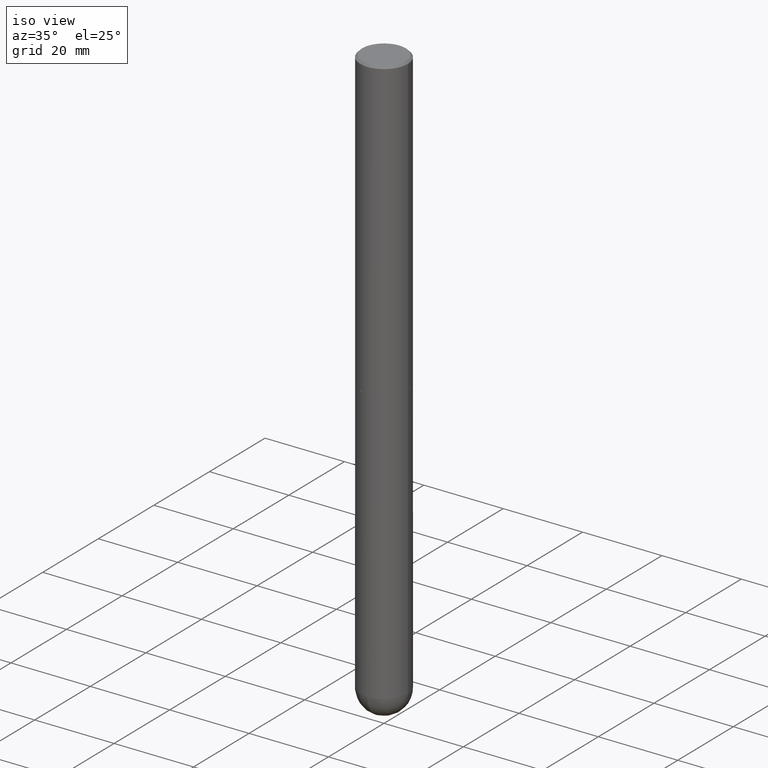
[diagram: clean part render]
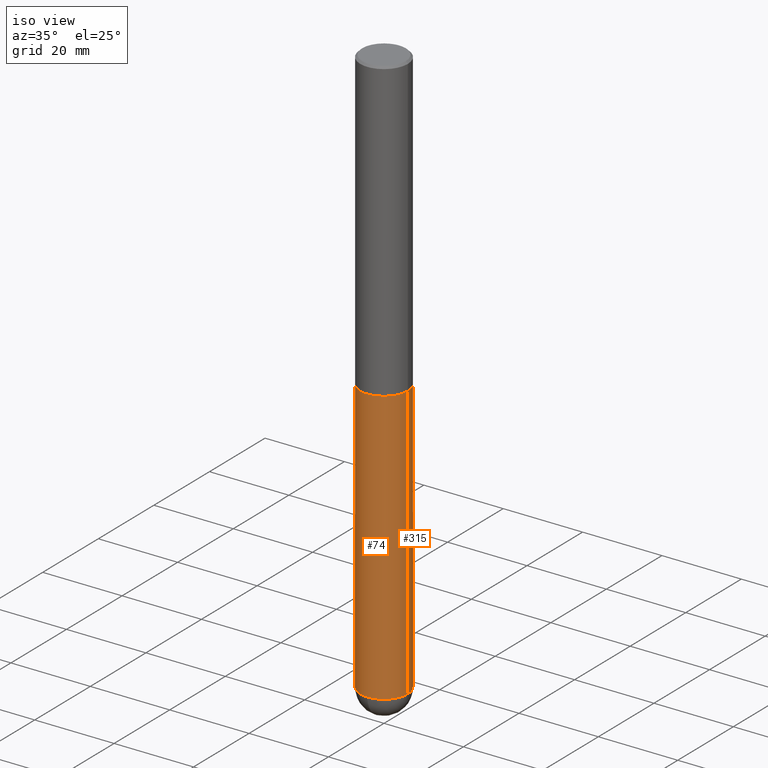
[diagram: same view with one multi-face feature highlighted, each face labeled with its STEP entity id]
A machine part, iso view. The highlighted faces form ONE feature: a constant-radius fillet chain: 2 tangent blend faces with common blend radius 5.9995 mm. The faces share edges in the B-rep.
Their STEP definitions:
[1] entity #315 (Cylinder):
#1 = DIRECTION ( 'NONE',  ( -2.445468806185136597E-29, 3.491481338843145583E-15, 1.000000000000000000 ) ) ;
#2 = CARTESIAN_POINT ( 'NONE',  ( 0.000000000000000000, 0.000000000000000000, 0.000000000000000000 ) ) ;
#7 = EDGE_CURVE ( 'NONE', #111, #225, #255, .T. ) ;
#16 = ORIENTED_EDGE ( 'NONE', *, *, #338, .T. ) ;
#28 = CARTESIAN_POINT ( 'NONE',  ( 1.386409630290539494E-28, -1.979425515430344370E-14, -5.669299999999999784 ) ) ;
#33 = CARTESIAN_POINT ( 'NONE',  ( -0.2361999999999999933, -1.337347410988744691E-14, -5.669299999999999784 ) ) ;
#36 = CIRCLE ( 'NONE', #278, 0.2361999999999999933 ) ;
#37 = LINE ( 'NONE', #227, #345 ) ;
#38 = LINE ( 'NONE', #138, #68 ) ;
#56 = DIRECTION ( 'NONE',  ( 1.000000000000000000, -6.982962677686273021E-15, 0.000000000000000000 ) ) ;
#65 = ORIENTED_EDGE ( 'NONE', *, *, #7, .T. ) ;
#68 = VECTOR ( 'NONE', #201, 39.37007874015748143 ) ;
#83 = DIRECTION ( 'NONE',  ( -2.445468806185136597E-29, 3.491481338843145583E-15, 1.000000000000000000 ) ) ;
#87 = VERTEX_POINT ( 'NONE', #215 ) ;
#111 = VERTEX_POINT ( 'NONE', #378 ) ;
#129 = DIRECTION ( 'NONE',  ( 1.000000000000000000, -6.982962677686273021E-15, 0.000000000000000000 ) ) ;
#130 = ORIENTED_EDGE ( 'NONE', *, *, #216, .F. ) ;
#136 = VERTEX_POINT ( 'NONE', #381 ) ;
#138 = CARTESIAN_POINT ( 'NONE',  ( -0.2361999999999999933, 1.678301941865356591E-15, -1.161852468318208757E-29 ) ) ;
#147 = EDGE_LOOP ( 'NONE', ( #65, #16, #130, #192, #148 ) ) ;
#148 = ORIENTED_EDGE ( 'NONE', *, *, #288, .T. ) ;
#160 = FACE_OUTER_BOUND ( 'NONE', #147, .T. ) ;
#161 = CARTESIAN_POINT ( 'NONE',  ( 7.220735744022852519E-29, -1.030929694920215502E-14, -2.952700000000000102 ) ) ;
#169 = AXIS2_PLACEMENT_3D ( 'NONE', #2, #83, #293 ) ;
#192 = ORIENTED_EDGE ( 'NONE', *, *, #282, .F. ) ;
#201 = DIRECTION ( 'NONE',  ( -2.445468806185136877E-29, 3.491481338843145188E-15, 1.000000000000000000 ) ) ;
#215 = CARTESIAN_POINT ( 'NONE',  ( 0.2361999999999999933, -1.670115183622230141E-14, -5.669299999999999784 ) ) ;
#216 = EDGE_CURVE ( 'NONE', #136, #219, #230, .T. ) ;
#219 = VERTEX_POINT ( 'NONE', #254 ) ;
#225 = VERTEX_POINT ( 'NONE', #33 ) ;
#227 = CARTESIAN_POINT ( 'NONE',  ( 0.2361999999999999933, -1.649375784469496131E-15, 1.151752954443000088E-29 ) ) ;
#230 = CIRCLE ( 'NONE', #364, 0.2361999999999999933 ) ;
#254 = CARTESIAN_POINT ( 'NONE',  ( -0.2361999999999999933, -1.337347410988744218E-14, -2.952700000000000102 ) ) ;
#255 = CIRCLE ( 'NONE', #387, 0.2361999999999999933 ) ;
#278 = AXIS2_PLACEMENT_3D ( 'NONE', #28, #404, #129 ) ;
#282 = EDGE_CURVE ( 'NONE', #87, #136, #37, .T. ) ;
#288 = EDGE_CURVE ( 'NONE', #87, #111, #36, .T. ) ;
#293 = DIRECTION ( 'NONE',  ( 1.000000000000000000, -6.982962677686266711E-15, 4.876176775795936353E-29 ) ) ;
#315 = ADVANCED_FACE ( 'NONE', ( #160 ), #344, .T. ) ;
#337 = DIRECTION ( 'NONE',  ( -2.445468806185136597E-29, 3.491481338843145583E-15, 1.000000000000000000 ) ) ;
#338 = EDGE_CURVE ( 'NONE', #225, #219, #38, .T. ) ;
#344 = CYLINDRICAL_SURFACE ( 'NONE', #169, 0.2361999999999999933 ) ;
#345 = VECTOR ( 'NONE', #350, 39.37007874015748143 ) ;
#350 = DIRECTION ( 'NONE',  ( -2.445468806185136877E-29, 3.491481338843145188E-15, 1.000000000000000000 ) ) ;
#364 = AXIS2_PLACEMENT_3D ( 'NONE', #161, #1, #386 ) ;
#369 = CARTESIAN_POINT ( 'NONE',  ( 1.386409630290539494E-28, -1.979425515430344370E-14, -5.669299999999999784 ) ) ;
#378 = CARTESIAN_POINT ( 'NONE',  ( 1.649375784469633984E-15, 0.2361999999999800925, -5.669300000000000672 ) ) ;
#381 = CARTESIAN_POINT ( 'NONE',  ( 0.2361999999999999933, -1.195867273367164996E-14, -2.952700000000000102 ) ) ;
#386 = DIRECTION ( 'NONE',  ( 1.000000000000000000, -6.982962677686265133E-15, 0.000000000000000000 ) ) ;
#387 = AXIS2_PLACEMENT_3D ( 'NONE', #369, #337, #56 ) ;
#404 = DIRECTION ( 'NONE',  ( -2.445468806185136597E-29, 3.491481338843145583E-15, 1.000000000000000000 ) ) ;
[2] entity #74 (Cylinder):
#19 = DIRECTION ( 'NONE',  ( 1.000000000000000000, -6.982962677686266711E-15, 4.876176775795936353E-29 ) ) ;
#27 = AXIS2_PLACEMENT_3D ( 'NONE', #153, #249, #48 ) ;
#30 = DIRECTION ( 'NONE',  ( 1.000000000000000000, -6.982962677686273021E-15, 0.000000000000000000 ) ) ;
#33 = CARTESIAN_POINT ( 'NONE',  ( -0.2361999999999999933, -1.337347410988744691E-14, -5.669299999999999784 ) ) ;
#37 = LINE ( 'NONE', #227, #345 ) ;
#38 = LINE ( 'NONE', #138, #68 ) ;
#46 = CIRCLE ( 'NONE', #358, 0.2361999999999999933 ) ;
#48 = DIRECTION ( 'NONE',  ( 1.000000000000000000, -6.982962677686265133E-15, 0.000000000000000000 ) ) ;
#52 = DIRECTION ( 'NONE',  ( -2.445468806185136597E-29, 3.491481338843145583E-15, 1.000000000000000000 ) ) ;
#60 = EDGE_CURVE ( 'NONE', #219, #136, #143, .T. ) ;
#68 = VECTOR ( 'NONE', #201, 39.37007874015748143 ) ;
#74 = ADVANCED_FACE ( 'NONE', ( #275 ), #156, .T. ) ;
#87 = VERTEX_POINT ( 'NONE', #215 ) ;
#95 = ORIENTED_EDGE ( 'NONE', *, *, #135, .T. ) ;
#98 = DIRECTION ( 'NONE',  ( 1.000000000000000000, -6.982962677686273021E-15, 0.000000000000000000 ) ) ;
#128 = ORIENTED_EDGE ( 'NONE', *, *, #60, .F. ) ;
#135 = EDGE_CURVE ( 'NONE', #303, #87, #402, .T. ) ;
#136 = VERTEX_POINT ( 'NONE', #381 ) ;
#138 = CARTESIAN_POINT ( 'NONE',  ( -0.2361999999999999933, 1.678301941865356591E-15, -1.161852468318208757E-29 ) ) ;
#143 = CIRCLE ( 'NONE', #27, 0.2361999999999999933 ) ;
#153 = CARTESIAN_POINT ( 'NONE',  ( 7.220735744022852519E-29, -1.030929694920215502E-14, -2.952700000000000102 ) ) ;
#156 = CYLINDRICAL_SURFACE ( 'NONE', #220, 0.2361999999999999933 ) ;
#193 = DIRECTION ( 'NONE',  ( -2.445468806185136597E-29, 3.491481338843145583E-15, 1.000000000000000000 ) ) ;
#197 = EDGE_LOOP ( 'NONE', ( #394, #362, #95, #209, #128 ) ) ;
#201 = DIRECTION ( 'NONE',  ( -2.445468806185136877E-29, 3.491481338843145188E-15, 1.000000000000000000 ) ) ;
#209 = ORIENTED_EDGE ( 'NONE', *, *, #282, .T. ) ;
#215 = CARTESIAN_POINT ( 'NONE',  ( 0.2361999999999999933, -1.670115183622230141E-14, -5.669299999999999784 ) ) ;
#219 = VERTEX_POINT ( 'NONE', #254 ) ;
#220 = AXIS2_PLACEMENT_3D ( 'NONE', #302, #52, #19 ) ;
#224 = CARTESIAN_POINT ( 'NONE',  ( 1.386409630290539494E-28, -1.979425515430344370E-14, -5.669299999999999784 ) ) ;
#225 = VERTEX_POINT ( 'NONE', #33 ) ;
#227 = CARTESIAN_POINT ( 'NONE',  ( 0.2361999999999999933, -1.649375784469496131E-15, 1.151752954443000088E-29 ) ) ;
#249 = DIRECTION ( 'NONE',  ( -2.445468806185136597E-29, 3.491481338843145583E-15, 1.000000000000000000 ) ) ;
#253 = CARTESIAN_POINT ( 'NONE',  ( -1.678301941865220316E-15, -0.2362000000000201716, -5.669299999999998896 ) ) ;
#254 = CARTESIAN_POINT ( 'NONE',  ( -0.2361999999999999933, -1.337347410988744218E-14, -2.952700000000000102 ) ) ;
#274 = EDGE_CURVE ( 'NONE', #225, #303, #46, .T. ) ;
#275 = FACE_OUTER_BOUND ( 'NONE', #197, .T. ) ;
#282 = EDGE_CURVE ( 'NONE', #87, #136, #37, .T. ) ;
#298 = AXIS2_PLACEMENT_3D ( 'NONE', #224, #406, #98 ) ;
#302 = CARTESIAN_POINT ( 'NONE',  ( 0.000000000000000000, 0.000000000000000000, 0.000000000000000000 ) ) ;
#303 = VERTEX_POINT ( 'NONE', #253 ) ;
#338 = EDGE_CURVE ( 'NONE', #225, #219, #38, .T. ) ;
#345 = VECTOR ( 'NONE', #350, 39.37007874015748143 ) ;
#350 = DIRECTION ( 'NONE',  ( -2.445468806185136877E-29, 3.491481338843145188E-15, 1.000000000000000000 ) ) ;
#358 = AXIS2_PLACEMENT_3D ( 'NONE', #383, #193, #30 ) ;
#362 = ORIENTED_EDGE ( 'NONE', *, *, #274, .T. ) ;
#381 = CARTESIAN_POINT ( 'NONE',  ( 0.2361999999999999933, -1.195867273367164996E-14, -2.952700000000000102 ) ) ;
#383 = CARTESIAN_POINT ( 'NONE',  ( 1.386409630290539494E-28, -1.979425515430344370E-14, -5.669299999999999784 ) ) ;
#394 = ORIENTED_EDGE ( 'NONE', *, *, #338, .F. ) ;
#402 = CIRCLE ( 'NONE', #298, 0.2361999999999999933 ) ;
#406 = DIRECTION ( 'NONE',  ( -2.445468806185136597E-29, 3.491481338843145583E-15, 1.000000000000000000 ) ) ;